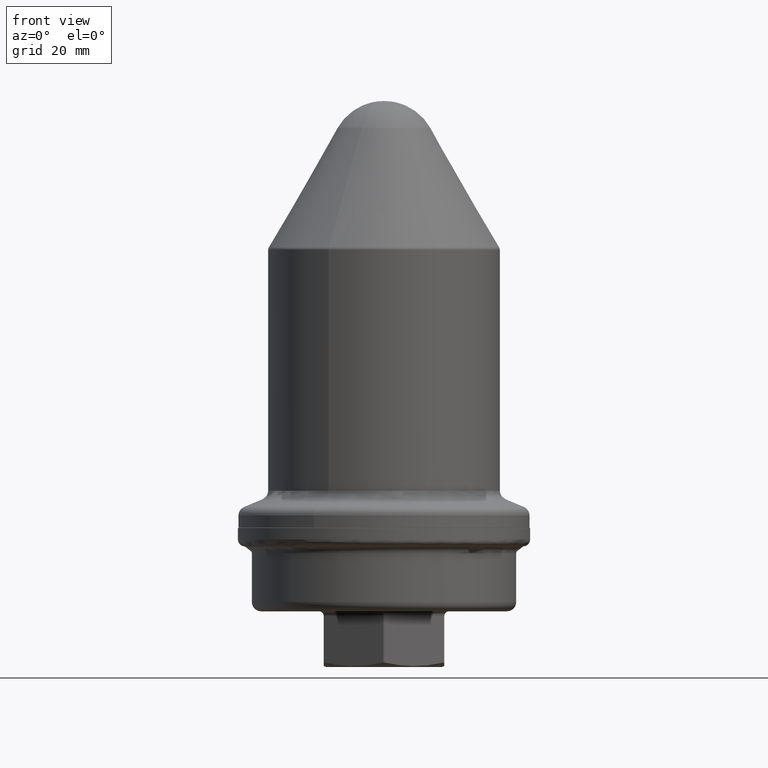
[diagram: clean part render]
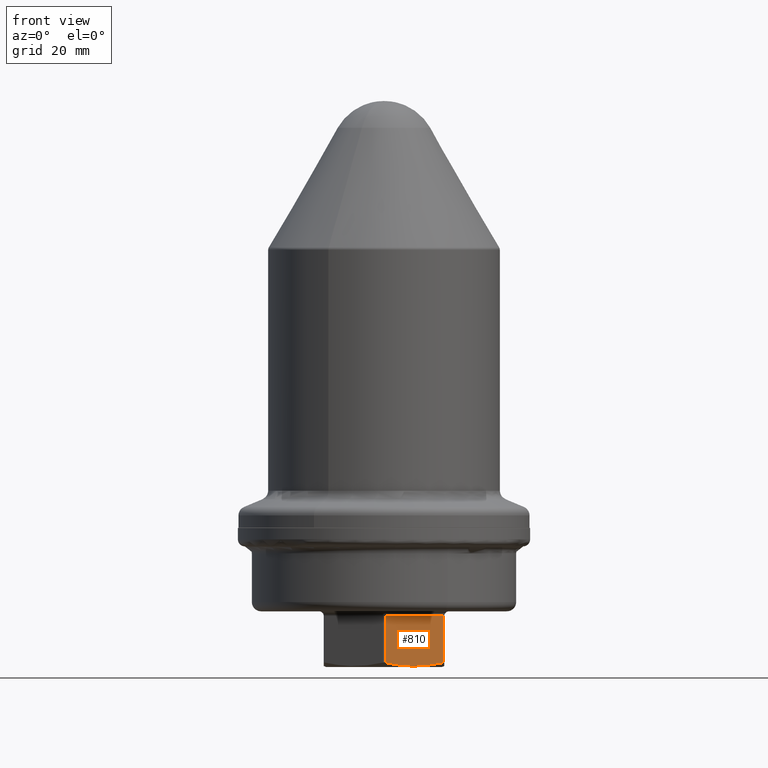
[diagram: same view with one face highlighted and labeled with its STEP entity id]
A machine part, front view. The second image highlights one B-rep face of the part: STEP entity #810.
In plain terms, the highlighted planar face has unit normal (0.5, -0.866, 0).
Its self-contained STEP definition (entity closure, byte-faithful):
#789=AXIS2_PLACEMENT_3D('Plane Axis2P3D',#786,#787,#788) ;
#502=CARTESIAN_POINT('Vertex',(6.23426786007,-11.4117507717,0.197005482234)) ;
#506=CARTESIAN_POINT('Control Point',(6.23426786007,-11.4117507717,0.197005482234)) ;
#507=CARTESIAN_POINT('Control Point',(4.762539525,-12.2614535221,0.213045548972)) ;
#508=CARTESIAN_POINT('Control Point',(3.28880362381,-13.1123153577,0.347250989417)) ;
#509=CARTESIAN_POINT('Control Point',(1.77837655063,-13.9843605544,0.600471096515)) ;
#510=CARTESIAN_POINT('Control Point',(0.250000053041,-14.8667693868,0.943105697447)) ;
#511=CARTESIAN_POINT('Vertex',(0.25,-14.8667694316,0.943105697447)) ;
#552=CARTESIAN_POINT('Vertex',(12.75,-7.64989106676,0.943105689499)) ;
#556=CARTESIAN_POINT('Control Point',(6.23426786007,-11.4117507717,0.197005482234)) ;
#557=CARTESIAN_POINT('Control Point',(7.83887222398,-10.4853320103,0.179517226779)) ;
#558=CARTESIAN_POINT('Control Point',(9.43914094029,-9.56141667312,0.302378062649)) ;
#559=CARTESIAN_POINT('Control Point',(11.0836372966,-8.61196563337,0.569537111676)) ;
#560=CARTESIAN_POINT('Control Point',(12.7499999037,-7.64989110329,0.943105689499)) ;
#767=CARTESIAN_POINT('Line Origine',(0.25,-14.8667694316,6.06418925366)) ;
#771=CARTESIAN_POINT('Vertex',(0.25,-14.8667694316,11.)) ;
#786=CARTESIAN_POINT('Axis2P3D Location',(1.7763568394E-015,-15.0111069989,0.)) ;
#791=CARTESIAN_POINT('Line Origine',(12.75,-7.64989106676,5.97155284475)) ;
#795=CARTESIAN_POINT('Vertex',(12.75,-7.64989106676,11.)) ;
#798=CARTESIAN_POINT('Line Origine',(6.5,-11.2583302492,11.)) ;
#768=DIRECTION('Vector Direction',(0.,0.,1.)) ;
#787=DIRECTION('Axis2P3D Direction',(0.5,-0.866025403784,0.)) ;
#788=DIRECTION('Axis2P3D XDirection',(0.866025403784,0.5,0.)) ;
#792=DIRECTION('Vector Direction',(0.,0.,1.)) ;
#799=DIRECTION('Vector Direction',(-0.866025403784,-0.5,0.)) ;
#769=VECTOR('Line Direction',#768,1.) ;
#793=VECTOR('Line Direction',#792,1.) ;
#800=VECTOR('Line Direction',#799,1.) ;
#804=ORIENTED_EDGE('',*,*,#773,.F.) ;
#805=ORIENTED_EDGE('',*,*,#513,.F.) ;
#806=ORIENTED_EDGE('',*,*,#561,.T.) ;
#807=ORIENTED_EDGE('',*,*,#797,.T.) ;
#808=ORIENTED_EDGE('',*,*,#802,.T.) ;
#810=ADVANCED_FACE('Hauptk\X2\00F6\X0\rper',(#809),#790,.T.) ;
#505=B_SPLINE_CURVE_WITH_KNOTS('',4,(#506,#507,#508,#509,#510),.UNSPECIFIED.,.F.,.U.,(5,5),(0.,9.89750713667),.UNSPECIFIED.) ;
#555=B_SPLINE_CURVE_WITH_KNOTS('',4,(#556,#557,#558,#559,#560),.UNSPECIFIED.,.F.,.U.,(5,5),(0.,10.7911105365),.UNSPECIFIED.) ;
#513=EDGE_CURVE('',#503,#512,#505,.T.) ;
#561=EDGE_CURVE('',#503,#553,#555,.T.) ;
#773=EDGE_CURVE('',#512,#772,#770,.T.) ;
#797=EDGE_CURVE('',#553,#796,#794,.T.) ;
#802=EDGE_CURVE('',#796,#772,#801,.T.) ;
#803=EDGE_LOOP('',(#804,#805,#806,#807,#808)) ;
#809=FACE_OUTER_BOUND('',#803,.T.) ;
#770=LINE('Line',#767,#769) ;
#794=LINE('Line',#791,#793) ;
#801=LINE('Line',#798,#800) ;
#790=PLANE('Plane',#789) ;
#503=VERTEX_POINT('',#502) ;
#512=VERTEX_POINT('',#511) ;
#553=VERTEX_POINT('',#552) ;
#772=VERTEX_POINT('',#771) ;
#796=VERTEX_POINT('',#795) ;